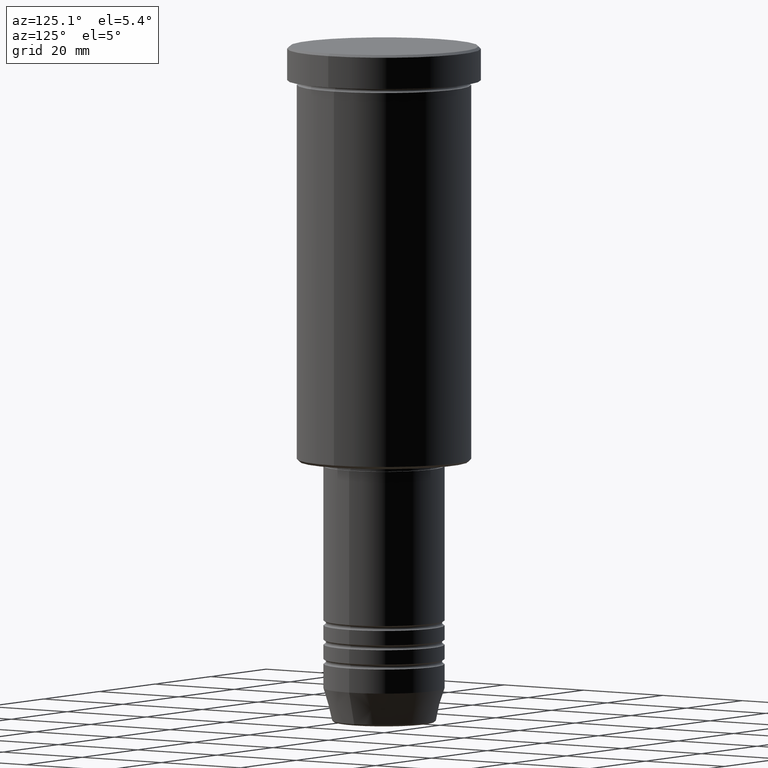
[diagram: clean part render]
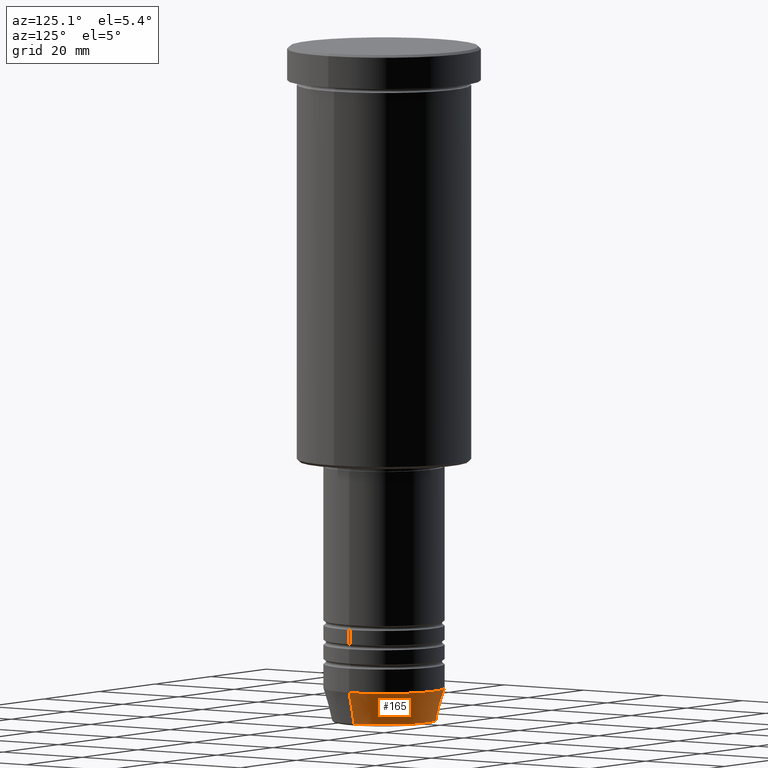
[diagram: same view with one face highlighted and labeled with its STEP entity id]
A machine part, auxiliary view. The second image highlights one B-rep face of the part: STEP entity #165.
In plain terms, the highlighted conical surface has half-angle 15 deg.
Its self-contained STEP definition (entity closure, byte-faithful):
#93 = CARTESIAN_POINT ( 'NONE',  ( -12.50000000000000000, 1.530808498934191521E-15, -133.0000000000000000 ) ) ;
#109 = ORIENTED_EDGE ( 'NONE', *, *, #245, .F. ) ;
#134 = VERTEX_POINT ( 'NONE', #900 ) ;
#164 = DIRECTION ( 'NONE',  ( 0.2588190451025213501, 0.000000000000000000, 0.9659258262890680902 ) ) ;
#165 = ADVANCED_FACE ( 'NONE', ( #1097 ), #337, .T. ) ;
#215 = VECTOR ( 'NONE', #164, 1000.000000000000000 ) ;
#242 = ORIENTED_EDGE ( 'NONE', *, *, #1120, .F. ) ;
#245 = EDGE_CURVE ( 'NONE', #134, #491, #1005, .T. ) ;
#321 = DIRECTION ( 'NONE',  ( 1.000000000000000000, 0.000000000000000000, 0.000000000000000000 ) ) ;
#336 = CARTESIAN_POINT ( 'NONE',  ( 0.000000000000000000, 0.000000000000000000, -133.0000000000000000 ) ) ;
#337 = CONICAL_SURFACE ( 'NONE', #609, 12.50000000000000000, 0.2617993877991500740 ) ;
#342 = CARTESIAN_POINT ( 'NONE',  ( -12.50000000000000000, 1.530808498934191521E-15, -133.0000000000000000 ) ) ;
#410 = EDGE_CURVE ( 'NONE', #1136, #475, #1067, .T. ) ;
#447 = CARTESIAN_POINT ( 'NONE',  ( 0.000000000000000000, 0.000000000000000000, -139.6294095225512990 ) ) ;
#475 = VERTEX_POINT ( 'NONE', #1085 ) ;
#486 = EDGE_CURVE ( 'NONE', #475, #491, #1078, .T. ) ;
#491 = VERTEX_POINT ( 'NONE', #342 ) ;
#520 = DIRECTION ( 'NONE',  ( -0.2588190451025213501, 3.169619151431772337E-17, 0.9659258262890680902 ) ) ;
#531 = CARTESIAN_POINT ( 'NONE',  ( 10.72365507213718416, 0.000000000000000000, -139.6294095225512990 ) ) ;
#609 = AXIS2_PLACEMENT_3D ( 'NONE', #646, #1115, #1009 ) ;
#642 = AXIS2_PLACEMENT_3D ( 'NONE', #336, #981, #321 ) ;
#646 = CARTESIAN_POINT ( 'NONE',  ( 0.000000000000000000, 0.000000000000000000, -133.0000000000000000 ) ) ;
#703 = AXIS2_PLACEMENT_3D ( 'NONE', #447, #1084, #814 ) ;
#814 = DIRECTION ( 'NONE',  ( 1.000000000000000000, 0.000000000000000000, 0.000000000000000000 ) ) ;
#856 = EDGE_LOOP ( 'NONE', ( #1146, #890, #109, #242 ) ) ;
#890 = ORIENTED_EDGE ( 'NONE', *, *, #486, .T. ) ;
#900 = CARTESIAN_POINT ( 'NONE',  ( 12.50000000000000000, 0.000000000000000000, -133.0000000000000000 ) ) ;
#981 = DIRECTION ( 'NONE',  ( -0.000000000000000000, -0.000000000000000000, 1.000000000000000000 ) ) ;
#1005 = CIRCLE ( 'NONE', #642, 12.50000000000000000 ) ;
#1009 = DIRECTION ( 'NONE',  ( 1.000000000000000000, 0.000000000000000000, 0.000000000000000000 ) ) ;
#1044 = VECTOR ( 'NONE', #520, 1000.000000000000000 ) ;
#1067 = CIRCLE ( 'NONE', #703, 10.72365507213718416 ) ;
#1069 = LINE ( 'NONE', #1075, #215 ) ;
#1075 = CARTESIAN_POINT ( 'NONE',  ( 12.50000000000000000, 0.000000000000000000, -133.0000000000000000 ) ) ;
#1078 = LINE ( 'NONE', #93, #1044 ) ;
#1084 = DIRECTION ( 'NONE',  ( -0.000000000000000000, -0.000000000000000000, 1.000000000000000000 ) ) ;
#1085 = CARTESIAN_POINT ( 'NONE',  ( -10.72365507213718416, 1.422038742429750121E-15, -139.6294095225512990 ) ) ;
#1097 = FACE_OUTER_BOUND ( 'NONE', #856, .T. ) ;
#1115 = DIRECTION ( 'NONE',  ( -0.000000000000000000, -0.000000000000000000, 1.000000000000000000 ) ) ;
#1120 = EDGE_CURVE ( 'NONE', #1136, #134, #1069, .T. ) ;
#1136 = VERTEX_POINT ( 'NONE', #531 ) ;
#1146 = ORIENTED_EDGE ( 'NONE', *, *, #410, .T. ) ;